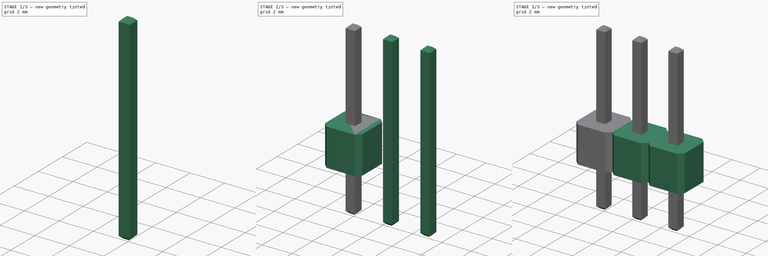
[diagram: build sequence overview — one tinted view per stage of 3, left to right]
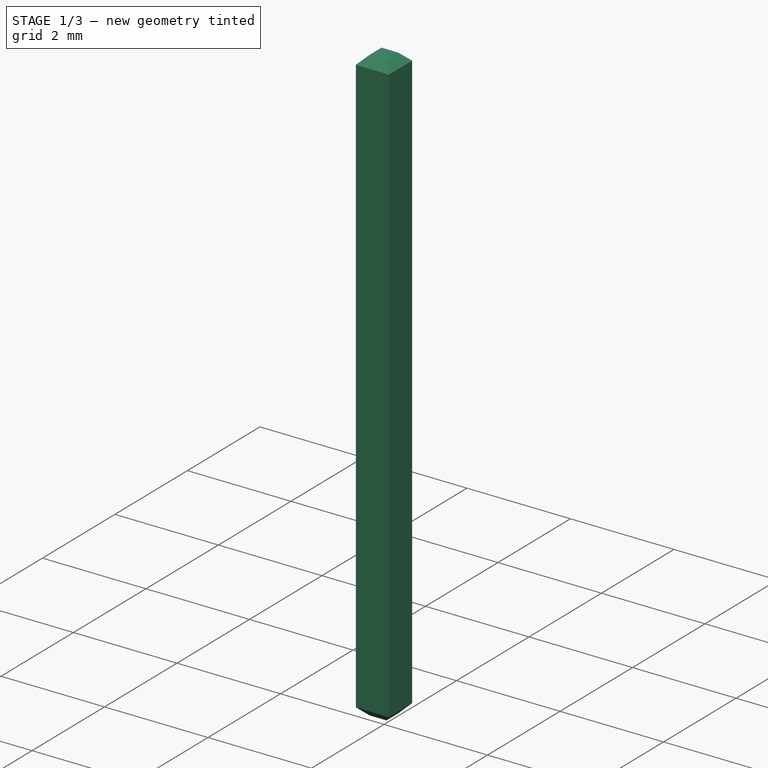
[diagram: stage 1 of 3 — iso view after this stage's code; geometry added in this stage tinted green]
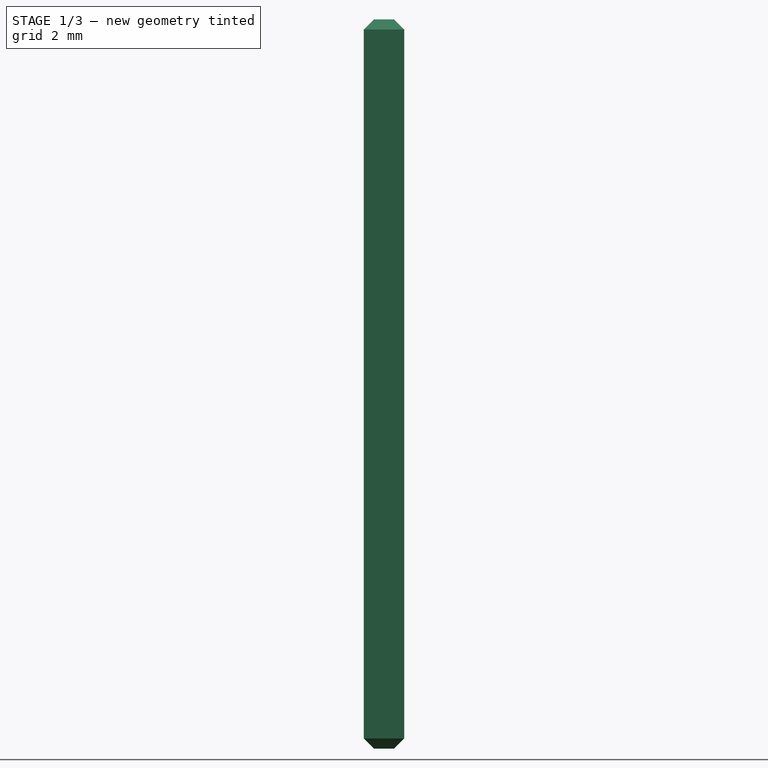
[diagram: stage 1 of 3 — front view after this stage's code; geometry added in this stage tinted green]
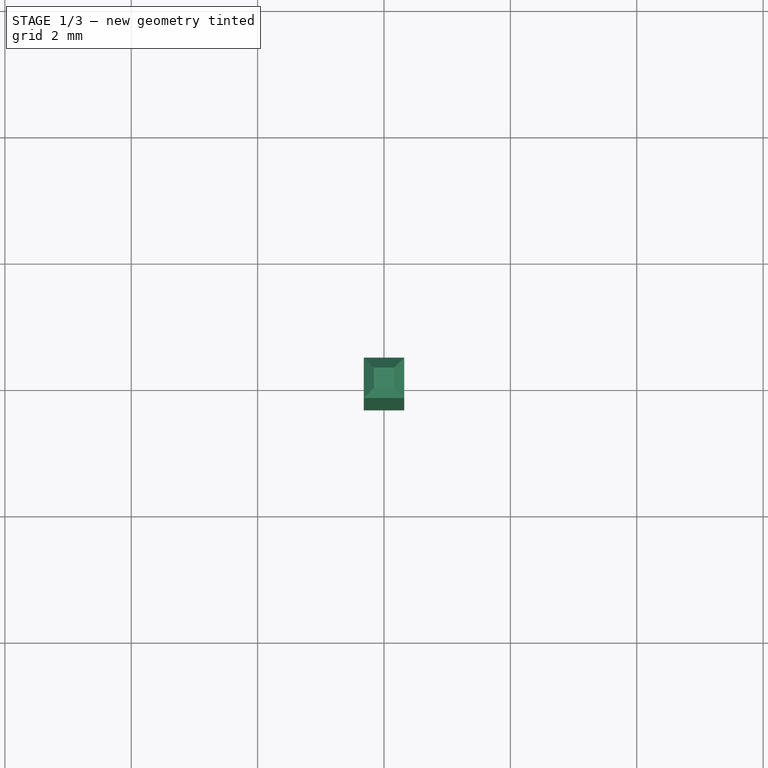
[diagram: stage 1 of 3 — top view after this stage's code; geometry added in this stage tinted green]
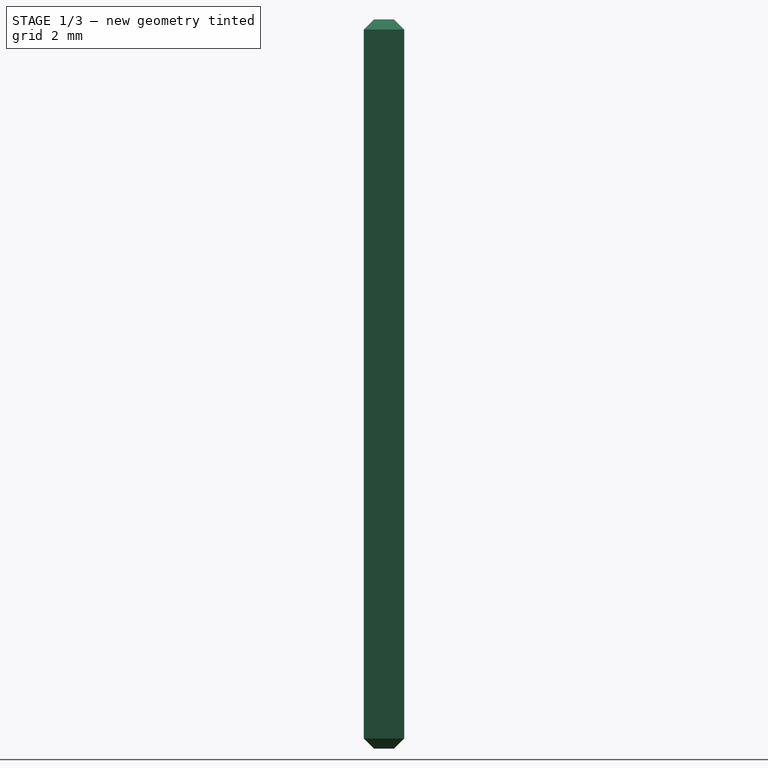
[diagram: stage 1 of 3 — right view after this stage's code; geometry added in this stage tinted green]
FCSTD DOCUMENT  (FreeCAD 0.19R17069 (Git))
Label: Generic Pin Headers
License: All rights reserved
LicenseURL: http://en.wikipedia.org/wiki/All_rights_reserved
objects: Sketcher::SketchObject×2, PartDesign::Pad×2, PartDesign::Chamfer×2, PartDesign::Body×2, Part::FeaturePython×2, Part::MultiFuse×1
note: 13 computed .brp shape members not serialized (recipe doc carries the construction recipe); baked Part::Feature solids carry a one-line shape summary decoded from their .brp

FEATURE [Sketcher::SketchObject] Sketch
  MapMode = 5
  Support = -> [XY_Plane]
  sketch-geometry (4):
    g0: LineSegment StartX=-0.32 StartY=0.32 StartZ=0 EndX=0.32 EndY=0.32 EndZ=0
    g1: LineSegment StartX=0.32 StartY=0.32 StartZ=0 EndX=0.32 EndY=-0.32 EndZ=0
    g2: LineSegment StartX=0.32 StartY=-0.32 StartZ=0 EndX=-0.32 EndY=-0.32 EndZ=0
    g3: LineSegment StartX=-0.32 StartY=-0.32 StartZ=0 EndX=-0.32 EndY=0.32 EndZ=0
  constraints (11):
    c: Coincident(g0,g1)
    c: Coincident(g1,g2)
    c: Coincident(g2,g3)
    c: Coincident(g3,g0)
    c: Horizontal(g0)
    c: Horizontal(g2)
    c: Vertical(g1)
    c: Vertical(g3)
    c: Symmetric(g0,g2,g-1)
    c: Equal(g0,g1)
    c: DistanceX(g0,g0) = 0.64
FEATURE [PartDesign::Pad] Pad
  Length = 8.54
  Length2 = 3
  Profile = -> Sketch
  Type = 4
FEATURE [PartDesign::Body] Body001  label="Housing"
  Group = -> [Sketch001,Pad001,Chamfer]
  Origin = -> Origin001
  Tip = -> Chamfer
FEATURE [PartDesign::Chamfer] Chamfer001
  Base = -> Pad [Face6,Face5]
  BaseFeature = -> Pad
  Size = 0.16
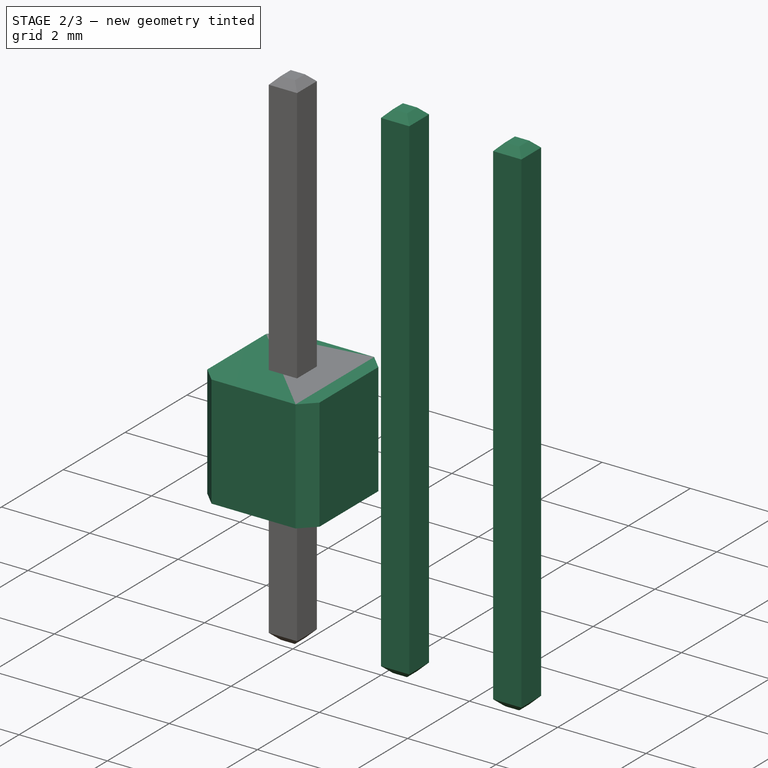
[diagram: stage 2 of 3 — iso view after this stage's code; geometry added in this stage tinted green]
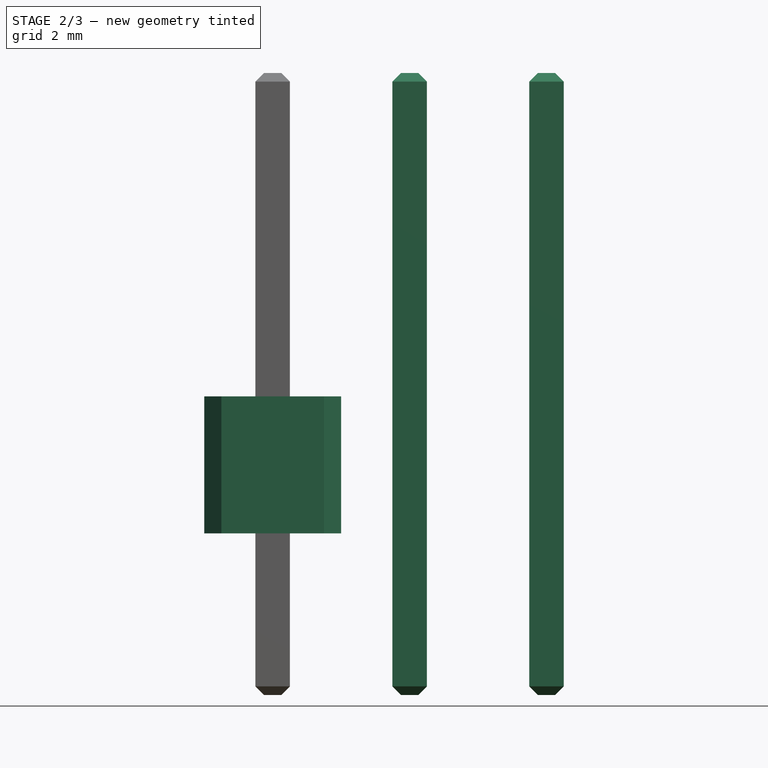
[diagram: stage 2 of 3 — front view after this stage's code; geometry added in this stage tinted green]
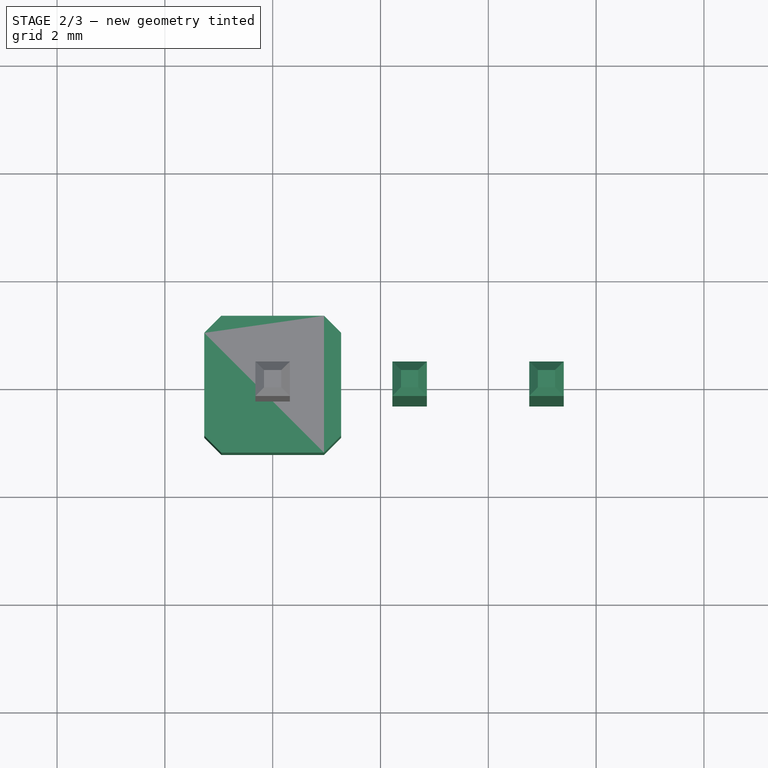
[diagram: stage 2 of 3 — top view after this stage's code; geometry added in this stage tinted green]
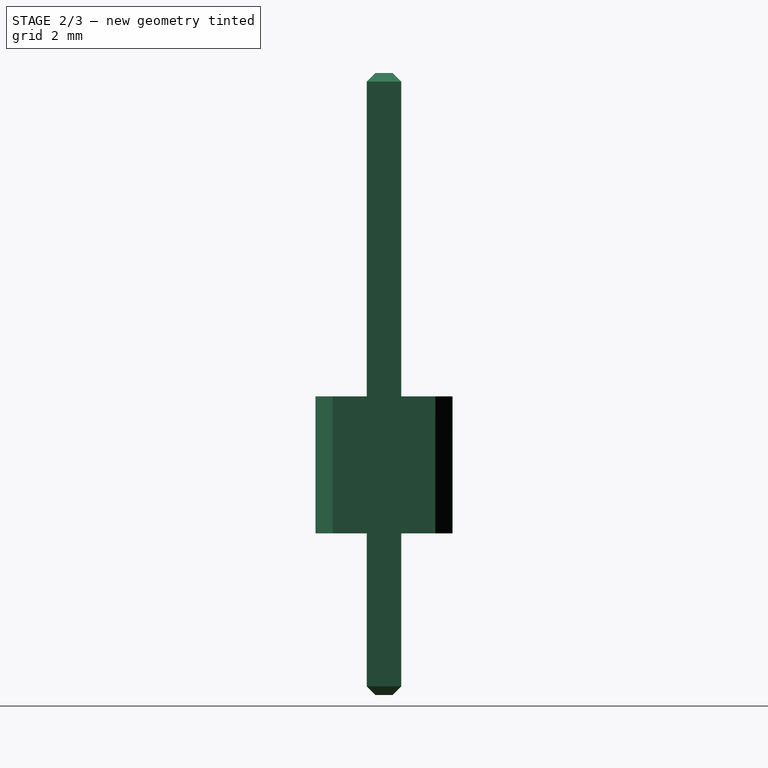
[diagram: stage 2 of 3 — right view after this stage's code; geometry added in this stage tinted green]
FEATURE [Sketcher::SketchObject] Sketch001
  MapMode = 5
  Support = -> [XY_Plane001]
  sketch-geometry (4):
    g0: LineSegment StartX=-1.27 StartY=1.27 StartZ=0 EndX=1.27 EndY=1.27 EndZ=0
    g1: LineSegment StartX=1.27 StartY=1.27 StartZ=0 EndX=1.27 EndY=-1.27 EndZ=0
    g2: LineSegment StartX=1.27 StartY=-1.27 StartZ=0 EndX=-1.27 EndY=-1.27 EndZ=0
    g3: LineSegment StartX=-1.27 StartY=-1.27 StartZ=0 EndX=-1.27 EndY=1.27 EndZ=0
  constraints (11):
    c: Coincident(g0,g1)
    c: Coincident(g1,g2)
    c: Coincident(g2,g3)
    c: Coincident(g3,g0)
    c: Horizontal(g0)
    c: Horizontal(g2)
    c: Vertical(g1)
    c: Vertical(g3)
    c: Symmetric(g0,g2,g-1)
    c: DistanceX(g0,g0) = 2.54
    c: Equal(g1,g0)
FEATURE [PartDesign::Pad] Pad001
  Length = 2.54
  Length2 = 100
  Profile = -> Sketch001
  Type = 0
FEATURE [PartDesign::Chamfer] Chamfer
  Base = -> Pad001 [Edge2,Edge5,Edge8,Edge1]
  BaseFeature = -> Pad001
  Size = 0.3175
FEATURE [Part::FeaturePython] Array001  label="ArrayPins"  # Draft array (typed FeaturePython)
  Angle = 360
  ArrayType = 0
  Axis = (0,0,1)
  Base = -> Body
  Center = (0,0,0)
  Fuse = false
  IntervalAxis = (0,0,0)
  IntervalX = (2.54,0,0)
  IntervalY = (0,1,0)
  IntervalZ = (0,0,1)
  NumberPolar = 1
  NumberX = 3
  NumberY = 1
  NumberZ = 1
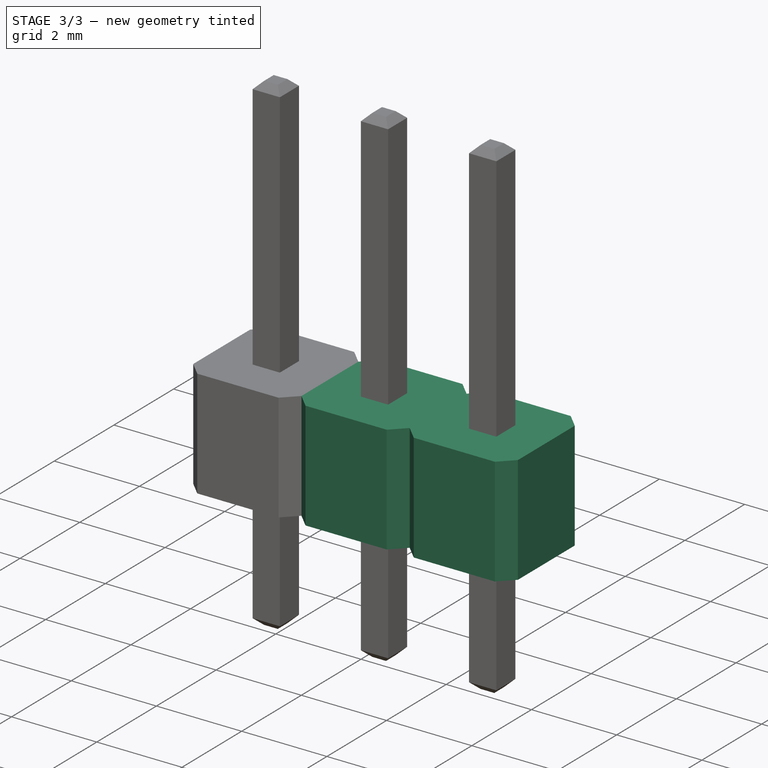
[diagram: stage 3 of 3 — iso view after this stage's code; geometry added in this stage tinted green]
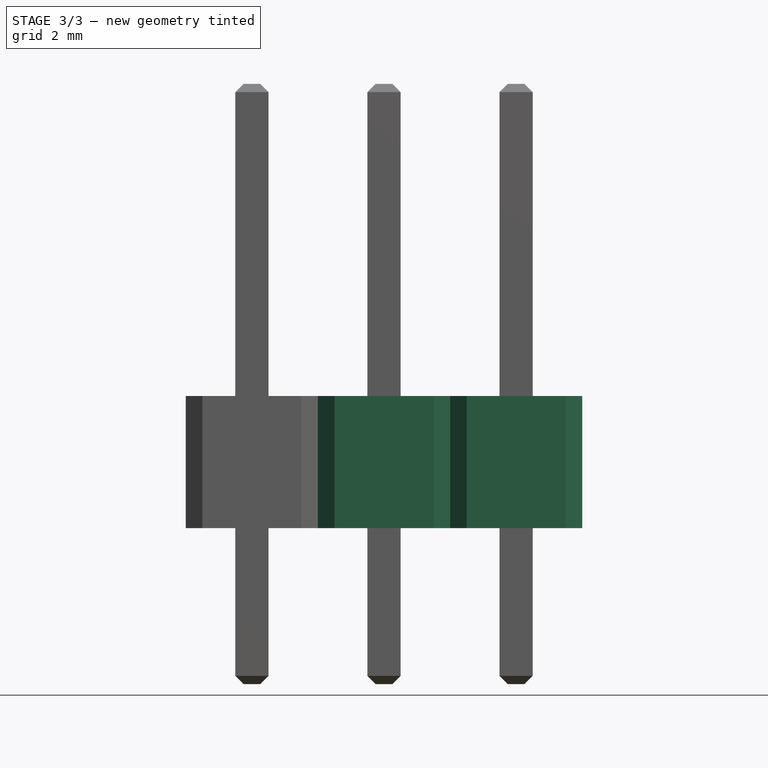
[diagram: stage 3 of 3 — front view after this stage's code; geometry added in this stage tinted green]
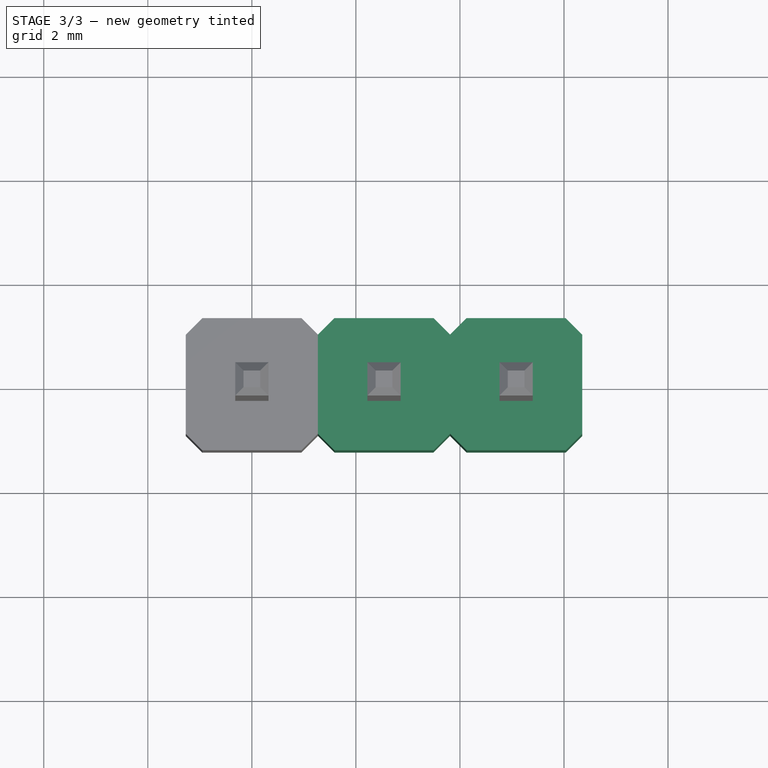
[diagram: stage 3 of 3 — top view after this stage's code; geometry added in this stage tinted green]
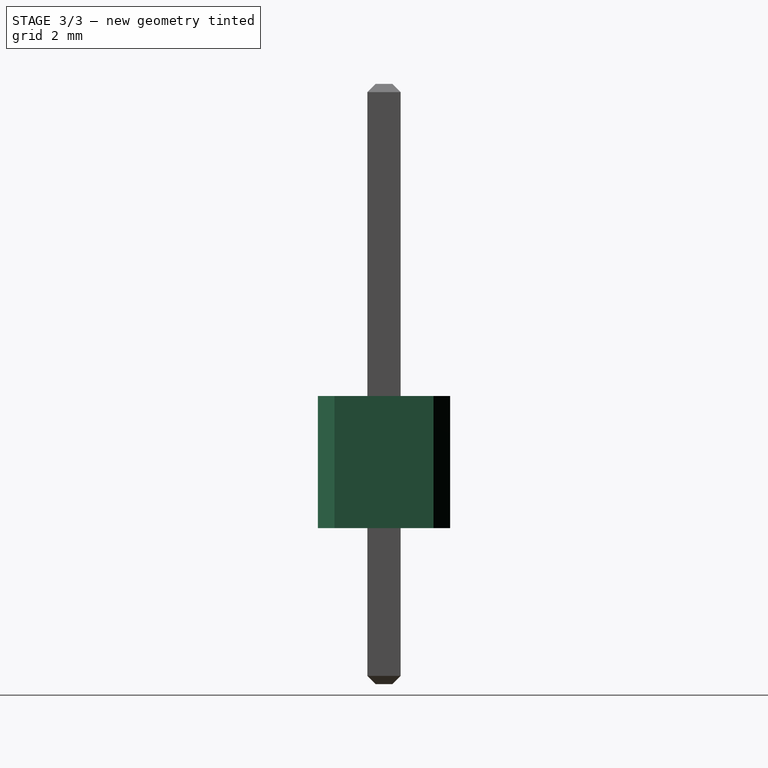
[diagram: stage 3 of 3 — right view after this stage's code; geometry added in this stage tinted green]
FEATURE [PartDesign::Body] Body  label="Pin"
  Group = -> [Sketch,Pad,Chamfer001]
  Origin = -> Origin
  Tip = -> Chamfer001
FEATURE [Part::FeaturePython] Array  label="ArrayHousings"  # Draft array (typed FeaturePython)
  Angle = 360
  ArrayType = 0
  Axis = (0,0,1)
  Base = -> Body001
  Center = (0,0,0)
  Fuse = false
  IntervalAxis = (0,0,0)
  IntervalX = (2.54,0,0)
  IntervalY = (0,1,0)
  IntervalZ = (0,0,1)
  NumberPolar = 1
  NumberX = 3
  NumberY = 1
  NumberZ = 1
FEATURE [Part::MultiFuse] Fusion  label="Pin_Header_Straight_01x03"
  Shapes = -> [Array,Array001]
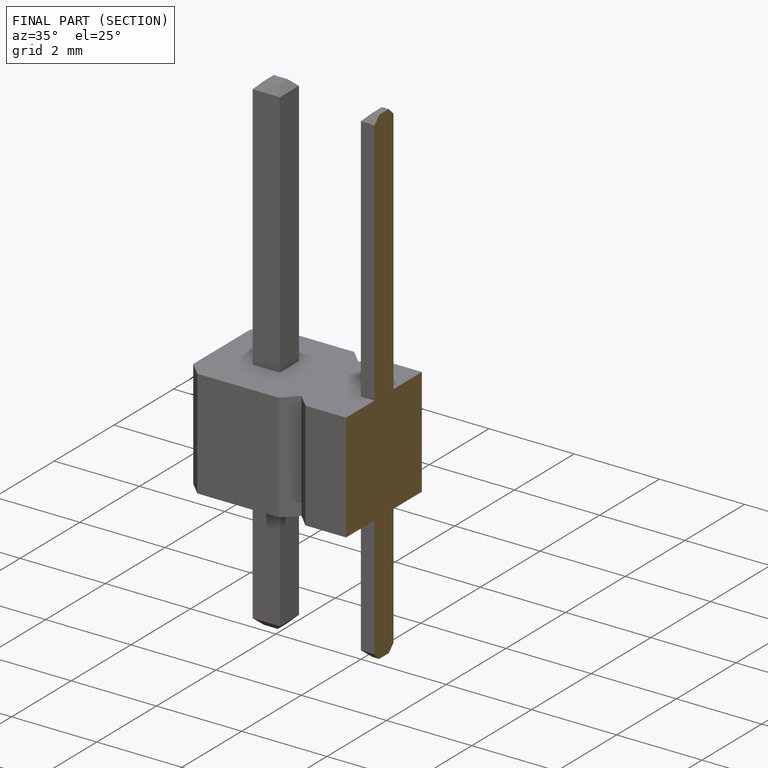
[diagram: finished part — half-section view (interior)]
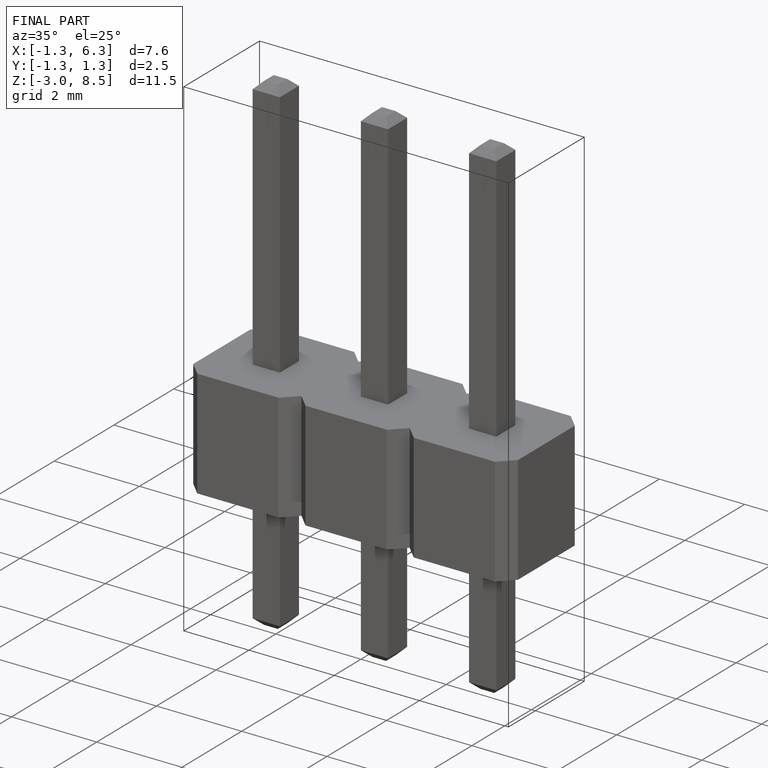
[diagram: finished part — iso view with bounding-box wireframe]
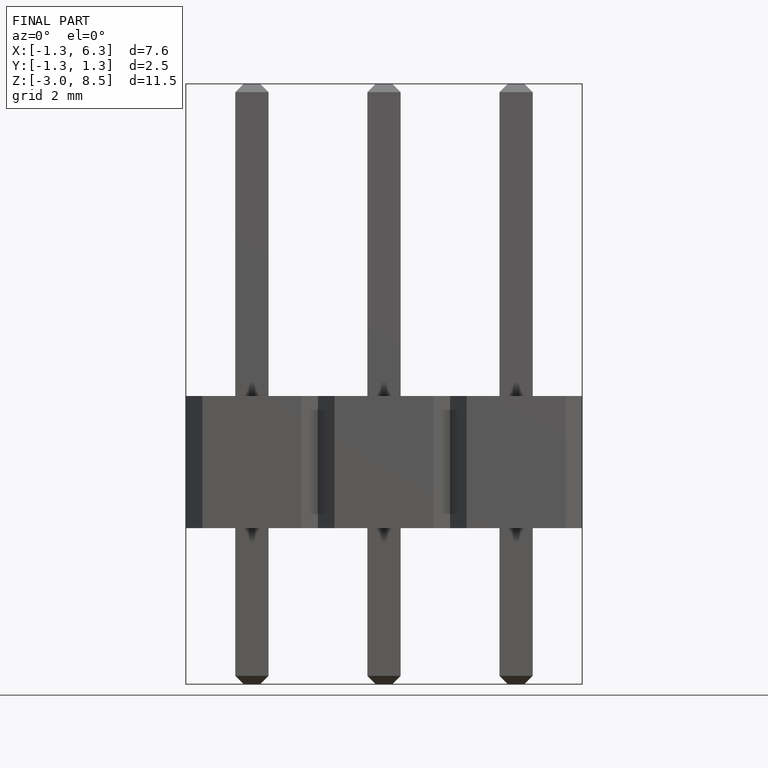
[diagram: finished part — front view with bounding-box wireframe]
